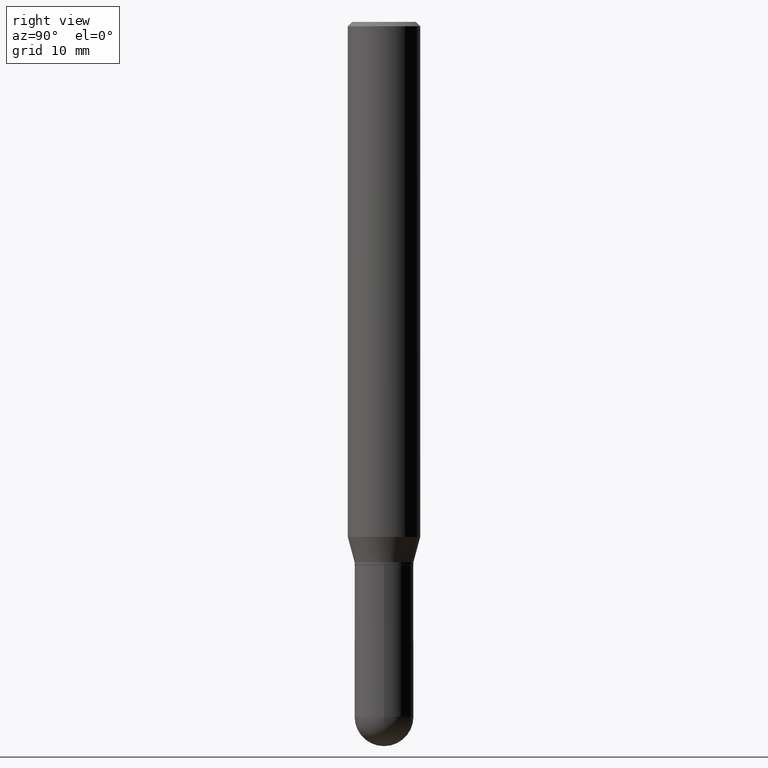
[diagram: clean part render]
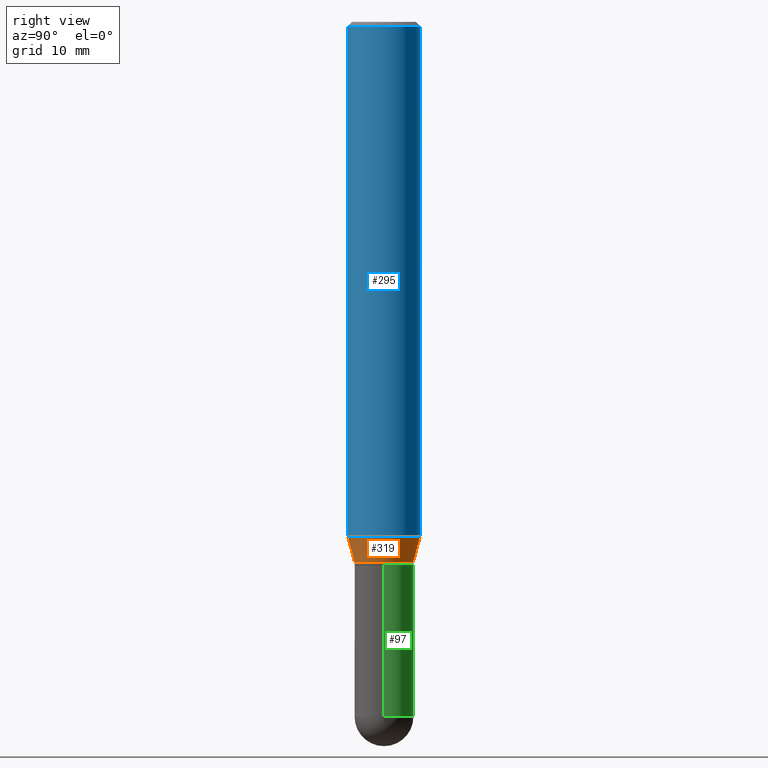
[diagram: same view with three faces highlighted in distinct colors, each labeled with its STEP entity id]
A machine part, right view with three faces highlighted in distinct colors.
Their STEP definitions:

[orange] entity #319 — the highlighted conical surface has half-angle 15 deg.
#19 = LINE ( 'NONE', #177, #69 ) ;
#26 = CARTESIAN_POINT ( 'NONE',  ( 4.346459722803774281E-29, -6.206509134430983691E-15, -1.777483408562510192 ) ) ;
#29 = DIRECTION ( 'NONE',  ( -6.982962677686266711E-15, -1.000000000000000000, 2.690150658458161914E-15 ) ) ;
#38 = VERTEX_POINT ( 'NONE', #451 ) ;
#59 = ORIENTED_EDGE ( 'NONE', *, *, #78, .T. ) ;
#69 = VECTOR ( 'NONE', #384, 39.37007874015748143 ) ;
#70 = CARTESIAN_POINT ( 'NONE',  ( 8.881784197001684225E-16, 0.1249999999999937828, -1.777483408562510858 ) ) ;
#78 = EDGE_CURVE ( 'NONE', #408, #157, #91, .T. ) ;
#91 = CIRCLE ( 'NONE', #486, 0.1015499999999999875 ) ;
#109 = EDGE_CURVE ( 'NONE', #38, #161, #311, .T. ) ;
#148 = CARTESIAN_POINT ( 'NONE',  ( 8.048672839322978639E-16, 0.1015499999999934788, -1.865000000000000213 ) ) ;
#157 = VERTEX_POINT ( 'NONE', #148 ) ;
#161 = VERTEX_POINT ( 'NONE', #70 ) ;
#162 = EDGE_CURVE ( 'NONE', #157, #161, #234, .T. ) ;
#163 = ORIENTED_EDGE ( 'NONE', *, *, #356, .F. ) ;
#164 = DIRECTION ( 'NONE',  ( -6.982962677686266711E-15, -1.000000000000000000, 2.690150658458161914E-15 ) ) ;
#168 = ORIENTED_EDGE ( 'NONE', *, *, #162, .T. ) ;
#177 = CARTESIAN_POINT ( 'NONE',  ( -7.091198599189946337E-16, -0.1015500000000064962, -1.864999999999999547 ) ) ;
#210 = FACE_OUTER_BOUND ( 'NONE', #361, .T. ) ;
#223 = AXIS2_PLACEMENT_3D ( 'NONE', #26, #270, #309 ) ;
#230 = CARTESIAN_POINT ( 'NONE',  ( 4.560463036661848921E-29, -6.512094278885478870E-15, -1.864999999999999991 ) ) ;
#234 = LINE ( 'NONE', #389, #272 ) ;
#248 = ORIENTED_EDGE ( 'NONE', *, *, #109, .F. ) ;
#270 = DIRECTION ( 'NONE',  ( -2.445288491507693836E-29, 3.491739559724117490E-15, 1.000000000000000000 ) ) ;
#272 = VECTOR ( 'NONE', #498, 39.37007874015748143 ) ;
#309 = DIRECTION ( 'NONE',  ( -6.982962677686265922E-15, -1.000000000000000000, 4.370956789862821150E-15 ) ) ;
#311 = CIRCLE ( 'NONE', #223, 0.1250000000000000000 ) ;
#319 = ADVANCED_FACE ( 'NONE', ( #210 ), #345, .T. ) ;
#345 = CONICAL_SURFACE ( 'NONE', #416, 0.1015499999999999875, 0.2617993877991511287 ) ;
#356 = EDGE_CURVE ( 'NONE', #408, #38, #19, .T. ) ;
#361 = EDGE_LOOP ( 'NONE', ( #59, #168, #248, #163 ) ) ;
#384 = DIRECTION ( 'NONE',  ( -1.807323732225336056E-15, -0.2588190451025190186, 0.9659258262890687563 ) ) ;
#389 = CARTESIAN_POINT ( 'NONE',  ( 7.215561481644272066E-16, 0.1015499999999934788, -1.865000000000000213 ) ) ;
#406 = DIRECTION ( 'NONE',  ( -2.445288491507693836E-29, 3.491739559724117490E-15, 1.000000000000000000 ) ) ;
#408 = VERTEX_POINT ( 'NONE', #449 ) ;
#416 = AXIS2_PLACEMENT_3D ( 'NONE', #443, #406, #164 ) ;
#443 = CARTESIAN_POINT ( 'NONE',  ( 4.560463036661848921E-29, -6.512094278885478870E-15, -1.864999999999999991 ) ) ;
#449 = CARTESIAN_POINT ( 'NONE',  ( -7.091198599189946337E-16, -0.1015500000000064962, -1.864999999999999547 ) ) ;
#451 = CARTESIAN_POINT ( 'NONE',  ( -8.728703347107400501E-16, -0.1250000000000062172, -1.777483408562509748 ) ) ;
#460 = DIRECTION ( 'NONE',  ( -2.445288491507693836E-29, 3.491739559724117490E-15, 1.000000000000000000 ) ) ;
#486 = AXIS2_PLACEMENT_3D ( 'NONE', #230, #460, #29 ) ;
#498 = DIRECTION ( 'NONE',  ( 1.839019923739606232E-15, 0.2588190451025257910, 0.9659258262890669799 ) ) ;

[blue] entity #295 — the highlighted cylindrical surface (edge-blend (fillet) strip) has radius 3.175 mm, axis along (-0, 0, 1).
#12 = LINE ( 'NONE', #492, #318 ) ;
#15 = AXIS2_PLACEMENT_3D ( 'NONE', #293, #144, #378 ) ;
#26 = CARTESIAN_POINT ( 'NONE',  ( 4.346459722803774281E-29, -6.206509134430983691E-15, -1.777483408562510192 ) ) ;
#34 = VERTEX_POINT ( 'NONE', #138 ) ;
#38 = VERTEX_POINT ( 'NONE', #451 ) ;
#46 = EDGE_LOOP ( 'NONE', ( #333, #221, #508, #468 ) ) ;
#70 = CARTESIAN_POINT ( 'NONE',  ( 8.881784197001684225E-16, 0.1249999999999937828, -1.777483408562510858 ) ) ;
#82 = CIRCLE ( 'NONE', #15, 0.1250000000000000000 ) ;
#109 = EDGE_CURVE ( 'NONE', #38, #161, #311, .T. ) ;
#114 = LINE ( 'NONE', #156, #457 ) ;
#138 = CARTESIAN_POINT ( 'NONE',  ( 8.881784197001688169E-16, 0.1249999999999999306, -0.01500000000000036027 ) ) ;
#144 = DIRECTION ( 'NONE',  ( -2.445288491507693836E-29, 3.491739559724117490E-15, 1.000000000000000000 ) ) ;
#156 = CARTESIAN_POINT ( 'NONE',  ( 8.881784197001251337E-16, 0.1250000000000000000, -4.364674449655146862E-16 ) ) ;
#161 = VERTEX_POINT ( 'NONE', #70 ) ;
#214 = DIRECTION ( 'NONE',  ( -2.445288491507693836E-29, 3.491739559724117490E-15, 1.000000000000000000 ) ) ;
#220 = EDGE_CURVE ( 'NONE', #161, #34, #114, .T. ) ;
#221 = ORIENTED_EDGE ( 'NONE', *, *, #220, .T. ) ;
#223 = AXIS2_PLACEMENT_3D ( 'NONE', #26, #270, #309 ) ;
#257 = DIRECTION ( 'NONE',  ( -2.445288491507693556E-29, 3.491739559724117490E-15, 1.000000000000000000 ) ) ;
#270 = DIRECTION ( 'NONE',  ( -2.445288491507693836E-29, 3.491739559724117490E-15, 1.000000000000000000 ) ) ;
#281 = FACE_OUTER_BOUND ( 'NONE', #46, .T. ) ;
#293 = CARTESIAN_POINT ( 'NONE',  ( 3.667932737261522064E-31, -5.237609339586149413E-17, -0.01499999999999992312 ) ) ;
#295 = ADVANCED_FACE ( 'NONE', ( #281 ), #475, .T. ) ;
#309 = DIRECTION ( 'NONE',  ( -6.982962677686265922E-15, -1.000000000000000000, 4.370956789862821150E-15 ) ) ;
#311 = CIRCLE ( 'NONE', #223, 0.1250000000000000000 ) ;
#318 = VECTOR ( 'NONE', #257, 39.37007874015748143 ) ;
#325 = DIRECTION ( 'NONE',  ( -6.982962677686265922E-15, -1.000000000000000000, 3.491739559724117490E-15 ) ) ;
#333 = ORIENTED_EDGE ( 'NONE', *, *, #109, .T. ) ;
#378 = DIRECTION ( 'NONE',  ( -6.982962677686265922E-15, -1.000000000000000000, 3.500180241882337261E-15 ) ) ;
#396 = CARTESIAN_POINT ( 'NONE',  ( 0.000000000000000000, 0.000000000000000000, 0.000000000000000000 ) ) ;
#397 = DIRECTION ( 'NONE',  ( -2.445288491507693556E-29, 3.491739559724117490E-15, 1.000000000000000000 ) ) ;
#400 = EDGE_CURVE ( 'NONE', #436, #34, #82, .T. ) ;
#436 = VERTEX_POINT ( 'NONE', #490 ) ;
#451 = CARTESIAN_POINT ( 'NONE',  ( -8.728703347107400501E-16, -0.1250000000000062172, -1.777483408562509748 ) ) ;
#457 = VECTOR ( 'NONE', #397, 39.37007874015748143 ) ;
#468 = ORIENTED_EDGE ( 'NONE', *, *, #500, .F. ) ;
#475 = CYLINDRICAL_SURFACE ( 'NONE', #510, 0.1250000000000000000 ) ;
#490 = CARTESIAN_POINT ( 'NONE',  ( -8.728703347107828458E-16, -0.1250000000000000555, -0.01499999999999948597 ) ) ;
#492 = CARTESIAN_POINT ( 'NONE',  ( -8.728703347107832402E-16, -0.1250000000000000000, 4.364674449655146862E-16 ) ) ;
#500 = EDGE_CURVE ( 'NONE', #38, #436, #12, .T. ) ;
#508 = ORIENTED_EDGE ( 'NONE', *, *, #400, .F. ) ;
#510 = AXIS2_PLACEMENT_3D ( 'NONE', #396, #214, #325 ) ;

[green] entity #97 — the highlighted cylindrical surface (edge-blend (fillet) strip) has radius 2.5794 mm, axis along (-0, 0, 1).
#17 = CARTESIAN_POINT ( 'NONE',  ( 0.1015500000000000708, -7.255647370249939489E-15, -1.875000000000000000 ) ) ;
#25 = AXIS2_PLACEMENT_3D ( 'NONE', #418, #187, #182 ) ;
#35 = AXIS2_PLACEMENT_3D ( 'NONE', #446, #266, #56 ) ;
#56 = DIRECTION ( 'NONE',  ( 1.000000000000000000, -6.982962677686269866E-15, 0.000000000000000000 ) ) ;
#63 = DIRECTION ( 'NONE',  ( 1.000000000000000000, -6.982962677686266711E-15, 4.876176775795936353E-29 ) ) ;
#66 = DIRECTION ( 'NONE',  ( 1.000000000000000000, -6.982962677686258033E-15, 0.000000000000000000 ) ) ;
#97 = ADVANCED_FACE ( 'NONE', ( #503 ), #461, .T. ) ;
#99 = CARTESIAN_POINT ( 'NONE',  ( 0.1015500000000000708, -7.091198599190408807E-16, 4.951757515820776576E-30 ) ) ;
#105 = CARTESIAN_POINT ( 'NONE',  ( -0.1015500000000000708, 7.215561481643822416E-16, -4.995178584153860605E-30 ) ) ;
#108 = DIRECTION ( 'NONE',  ( -2.445468806185136597E-29, 3.491481338843145583E-15, 1.000000000000000000 ) ) ;
#115 = CARTESIAN_POINT ( 'NONE',  ( -0.1015500000000000708, -6.738779315575238500E-15, -1.875000000000000000 ) ) ;
#133 = CIRCLE ( 'NONE', #399, 0.1015500000000000985 ) ;
#141 = EDGE_CURVE ( 'NONE', #199, #206, #225, .T. ) ;
#171 = ORIENTED_EDGE ( 'NONE', *, *, #466, .F. ) ;
#176 = ORIENTED_EDGE ( 'NONE', *, *, #141, .T. ) ;
#178 = AXIS2_PLACEMENT_3D ( 'NONE', #268, #108, #63 ) ;
#182 = DIRECTION ( 'NONE',  ( 1.000000000000000000, -6.982962677686258033E-15, 0.000000000000000000 ) ) ;
#187 = DIRECTION ( 'NONE',  ( -2.445468806185136597E-29, 3.491481338843145583E-15, 1.000000000000000000 ) ) ;
#199 = VERTEX_POINT ( 'NONE', #228 ) ;
#200 = ORIENTED_EDGE ( 'NONE', *, *, #414, .F. ) ;
#201 = CARTESIAN_POINT ( 'NONE',  ( 0.1015500000000000985, -8.169455323658661228E-15, -2.398450000000000415 ) ) ;
#206 = VERTEX_POINT ( 'NONE', #115 ) ;
#219 = VERTEX_POINT ( 'NONE', #429 ) ;
#225 = LINE ( 'NONE', #105, #439 ) ;
#228 = CARTESIAN_POINT ( 'NONE',  ( -0.1015500000000000985, -6.738779315575238500E-15, -2.398450000000000415 ) ) ;
#266 = DIRECTION ( 'NONE',  ( -2.445468806185136597E-29, 3.491481338843145583E-15, 1.000000000000000000 ) ) ;
#268 = CARTESIAN_POINT ( 'NONE',  ( 0.000000000000000000, 0.000000000000000000, 0.000000000000000000 ) ) ;
#279 = VECTOR ( 'NONE', #304, 39.37007874015748143 ) ;
#302 = CARTESIAN_POINT ( 'NONE',  ( 5.865334658194741045E-29, -8.374143417148343763E-15, -2.398450000000000415 ) ) ;
#304 = DIRECTION ( 'NONE',  ( -2.445468806185136877E-29, 3.491481338843145188E-15, 1.000000000000000000 ) ) ;
#316 = VERTEX_POINT ( 'NONE', #201 ) ;
#340 = LINE ( 'NONE', #99, #279 ) ;
#363 = EDGE_CURVE ( 'NONE', #316, #219, #133, .T. ) ;
#372 = EDGE_CURVE ( 'NONE', #219, #199, #464, .T. ) ;
#373 = ORIENTED_EDGE ( 'NONE', *, *, #372, .T. ) ;
#377 = CIRCLE ( 'NONE', #35, 0.1015500000000000708 ) ;
#399 = AXIS2_PLACEMENT_3D ( 'NONE', #302, #455, #66 ) ;
#412 = EDGE_LOOP ( 'NONE', ( #373, #176, #200, #171, #476 ) ) ;
#414 = EDGE_CURVE ( 'NONE', #467, #206, #377, .T. ) ;
#418 = CARTESIAN_POINT ( 'NONE',  ( 5.865334658194741045E-29, -8.374143417148343763E-15, -2.398450000000000415 ) ) ;
#422 = DIRECTION ( 'NONE',  ( -2.445468806185136877E-29, 3.491481338843145188E-15, 1.000000000000000000 ) ) ;
#429 = CARTESIAN_POINT ( 'NONE',  ( 7.091198599190993550E-16, 0.1015499999999916747, -2.398450000000000415 ) ) ;
#439 = VECTOR ( 'NONE', #422, 39.37007874015748143 ) ;
#446 = CARTESIAN_POINT ( 'NONE',  ( 4.585254011597131119E-29, -6.546527510330898707E-15, -1.875000000000000000 ) ) ;
#455 = DIRECTION ( 'NONE',  ( -2.445468806185136597E-29, 3.491481338843145583E-15, 1.000000000000000000 ) ) ;
#461 = CYLINDRICAL_SURFACE ( 'NONE', #178, 0.1015500000000000708 ) ;
#464 = CIRCLE ( 'NONE', #25, 0.1015500000000000985 ) ;
#466 = EDGE_CURVE ( 'NONE', #316, #467, #340, .T. ) ;
#467 = VERTEX_POINT ( 'NONE', #17 ) ;
#476 = ORIENTED_EDGE ( 'NONE', *, *, #363, .T. ) ;
#503 = FACE_OUTER_BOUND ( 'NONE', #412, .T. ) ;